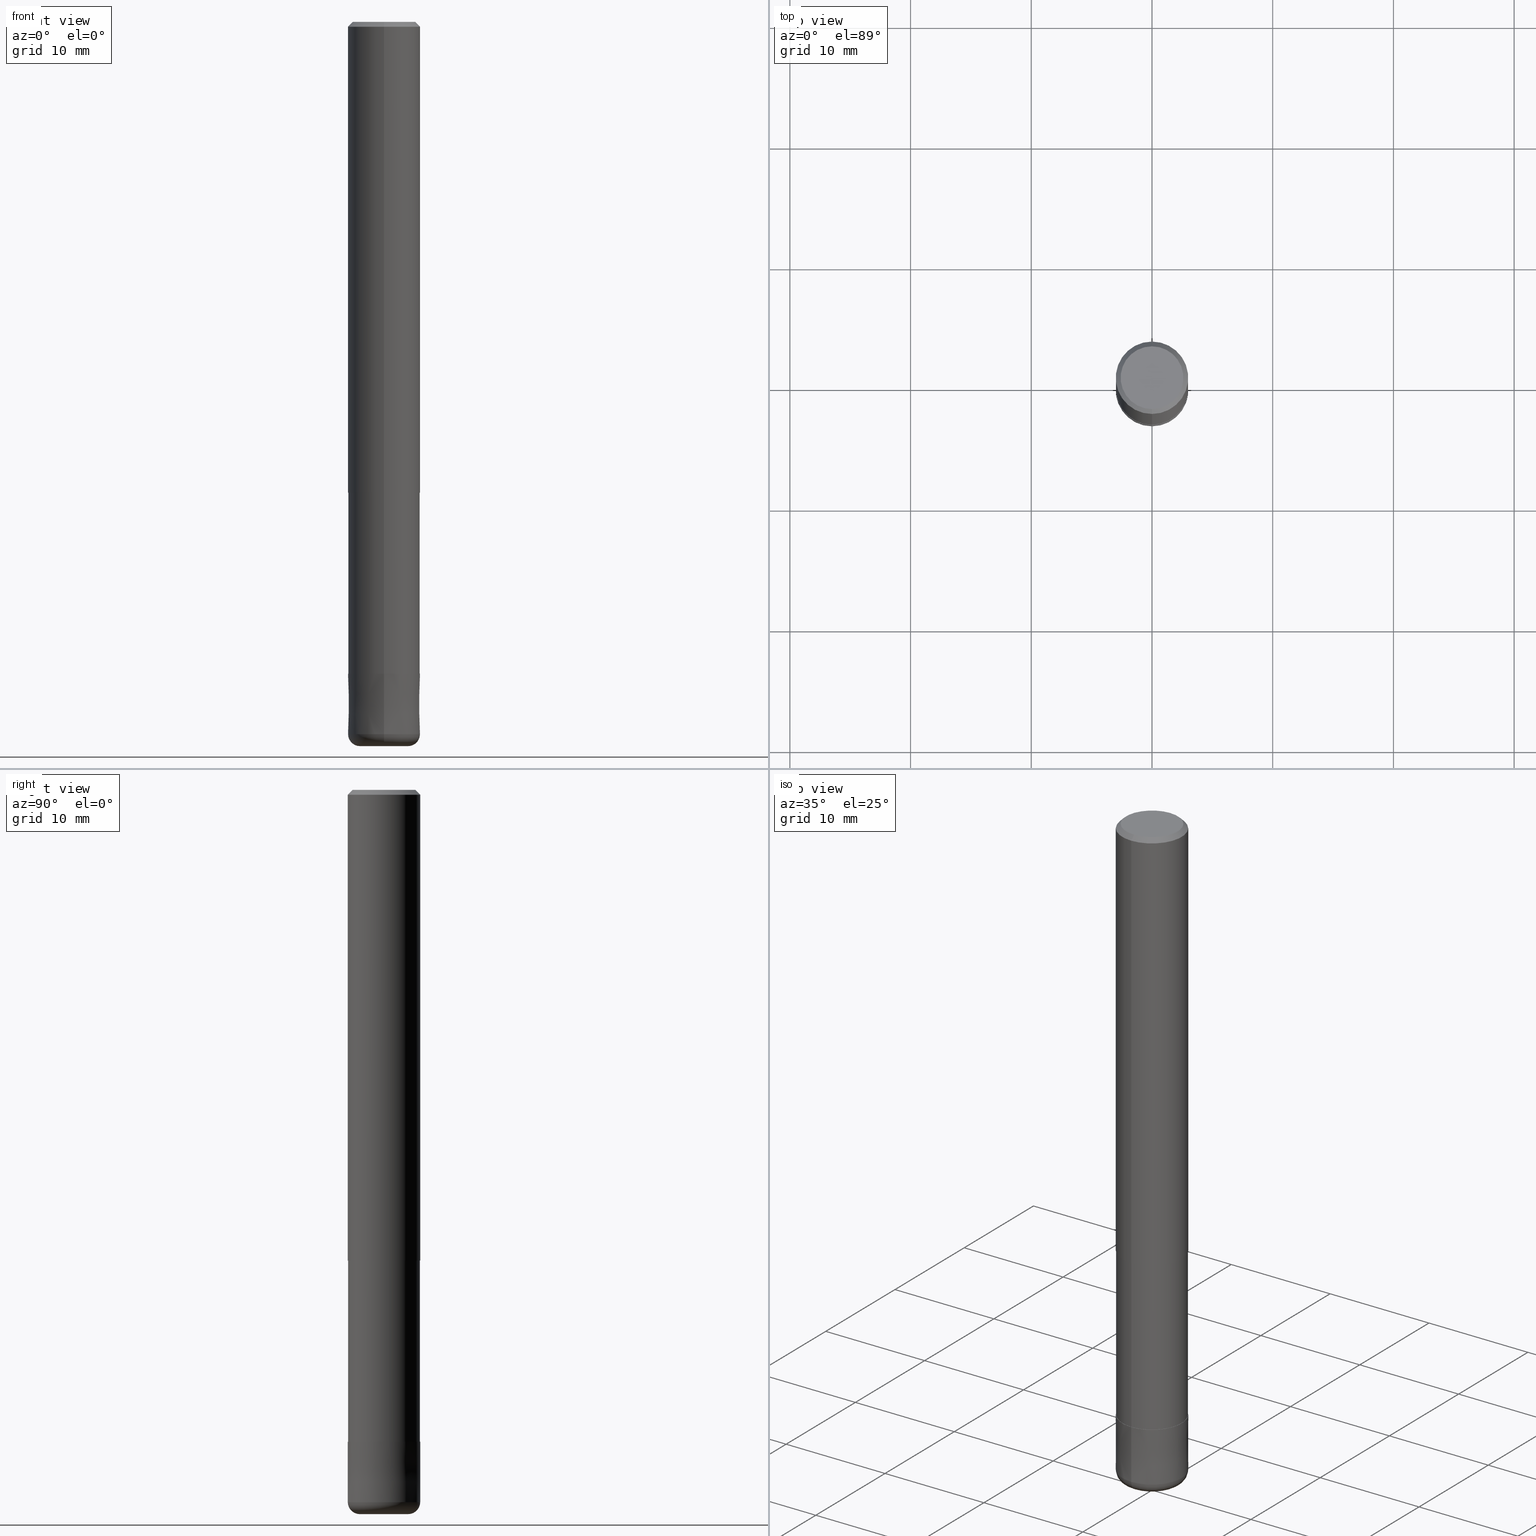
[diagram: canonical four-view strip — front | top / right | iso, engineering-drawing reading convention]
A machine part, canonical four-view strip (front | top / right | iso — engineering-drawing reading convention). The complete STEP part file that produces these views, byte-faithful:
ISO-10303-21;
HEADER;
FILE_DESCRIPTION(('no description'),'unknown implementation level');
FILE_NAME('HHRS6060-10-210-Huellk.stp','  ',('CIMSOURCE GmbH'),('CADClick - KiM GmbH - www.kimweb.de'),'unknown preprocess','ACIS','unknown authorization');
FILE_SCHEMA(('automotive_design'));
ENDSEC;
DATA;
#1=MECHANICAL_DESIGN_GEOMETRIC_PRESENTATION_REPRESENTATION(' ',(#14,#15,#16,#17,#18,#19,#20,#21,#22,#23,#24,#25,#26,#27,#28,#29,#30,#31,#32,#33,#34,#35,#36,#37,#38,#39,#40,#41,#42,#43,#44,#45,#46,#47,#48,#49,#50,#51,#52,#53,#54,#55,#56,#57,#58,#59,#60,#61,#62,#63,#64,#65,#66,#67,#68,#69,#70,#71,#72,#73,#74,#75,#76,#77,#78,#79,#80,#81,#82,#83,#84,#85,#86,#87,#88,#89,#90,#91,#92,#93,#94,#95,#96,#97),#10);
#2=PRODUCT_DEFINITION_CONTEXT('',#98,'design');
#3=APPLICATION_PROTOCOL_DEFINITION('INTERNATIONAL STANDARD','automotive_design',1994,#98);
#4=PRODUCT_CATEGORY_RELATIONSHIP('NONE','NONE',#99,#100);
#5=SHAPE_DEFINITION_REPRESENTATION(#101,#102);
#6=PRODUCT_DEFINITION_CONTEXT('',#103,'design');
#7=APPLICATION_PROTOCOL_DEFINITION('INTERNATIONAL STANDARD','automotive_design',1994,#103);
#8=PRODUCT_CATEGORY_RELATIONSHIP('NONE','NONE',#104,#105);
#9=SHAPE_DEFINITION_REPRESENTATION(#106,#107);
#10= (GEOMETRIC_REPRESENTATION_CONTEXT(3)GLOBAL_UNCERTAINTY_ASSIGNED_CONTEXT((#110))GLOBAL_UNIT_ASSIGNED_CONTEXT((#112,#113,#114))REPRESENTATION_CONTEXT('NONE','WORKSPACE'));
#14=STYLED_ITEM('',(#116),#117);
#15=STYLED_ITEM('',(#118),#119);
#16=STYLED_ITEM('',(#120),#121);
#17=STYLED_ITEM('',(#122),#123);
#18=STYLED_ITEM('',(#124),#125);
#19=STYLED_ITEM('',(#126),#127);
#20=STYLED_ITEM('',(#128),#129);
#21=STYLED_ITEM('',(#130),#131);
#22=STYLED_ITEM('',(#132),#133);
#23=STYLED_ITEM('',(#134),#135);
#24=STYLED_ITEM('',(#136),#137);
#25=STYLED_ITEM('',(#138),#139);
#26=STYLED_ITEM('',(#140),#141);
#27=STYLED_ITEM('',(#142),#143);
#28=STYLED_ITEM('',(#144),#145);
#29=STYLED_ITEM('',(#146),#147);
#30=STYLED_ITEM('',(#148),#149);
#31=STYLED_ITEM('',(#150),#151);
#32=STYLED_ITEM('',(#152),#153);
#33=STYLED_ITEM('',(#154),#155);
#34=STYLED_ITEM('',(#156),#157);
#35=STYLED_ITEM('',(#158),#159);
#36=STYLED_ITEM('',(#160),#161);
#37=STYLED_ITEM('',(#162),#163);
#38=STYLED_ITEM('',(#164),#165);
#39=STYLED_ITEM('',(#166),#167);
#40=STYLED_ITEM('',(#168),#169);
#41=STYLED_ITEM('',(#170),#171);
#42=STYLED_ITEM('',(#172),#173);
#43=STYLED_ITEM('',(#174),#175);
#44=STYLED_ITEM('',(#176),#177);
#45=STYLED_ITEM('',(#178),#179);
#46=STYLED_ITEM('',(#180),#181);
#47=STYLED_ITEM('',(#182),#183);
#48=STYLED_ITEM('',(#184),#185);
#49=STYLED_ITEM('',(#186),#187);
#50=STYLED_ITEM('',(#188),#189);
#51=STYLED_ITEM('',(#190),#191);
#52=STYLED_ITEM('',(#192),#193);
#53=STYLED_ITEM('',(#194),#195);
#54=STYLED_ITEM('',(#196),#197);
#55=STYLED_ITEM('',(#198),#199);
#56=STYLED_ITEM('',(#200),#201);
#57=STYLED_ITEM('',(#202),#203);
#58=STYLED_ITEM('',(#204),#205);
#59=STYLED_ITEM('',(#206),#207);
#60=STYLED_ITEM('',(#208),#209);
#61=STYLED_ITEM('',(#210),#211);
#62=STYLED_ITEM('',(#212),#213);
#63=STYLED_ITEM('',(#214),#215);
#64=STYLED_ITEM('',(#216),#217);
#65=STYLED_ITEM('',(#218),#219);
#66=STYLED_ITEM('',(#220),#221);
#67=STYLED_ITEM('',(#222),#223);
#68=STYLED_ITEM('',(#224),#225);
#69=STYLED_ITEM('',(#226),#227);
#70=STYLED_ITEM('',(#228),#229);
#71=STYLED_ITEM('',(#230),#231);
#72=STYLED_ITEM('',(#232),#233);
#73=STYLED_ITEM('',(#234),#235);
#74=STYLED_ITEM('',(#236),#237);
#75=STYLED_ITEM('',(#238),#239);
#76=STYLED_ITEM('',(#240),#241);
#77=STYLED_ITEM('',(#242),#243);
#78=STYLED_ITEM('',(#244),#245);
#79=STYLED_ITEM('',(#246),#247);
#80=STYLED_ITEM('',(#248),#249);
#81=STYLED_ITEM('',(#250),#251);
#82=STYLED_ITEM('',(#252),#253);
#83=STYLED_ITEM('',(#254),#255);
#84=STYLED_ITEM('',(#256),#257);
#85=STYLED_ITEM('',(#258),#259);
#86=STYLED_ITEM('',(#260),#261);
#87=STYLED_ITEM('',(#262),#263);
#88=STYLED_ITEM('',(#264),#265);
#89=STYLED_ITEM('',(#266),#267);
#90=STYLED_ITEM('',(#268),#269);
#91=STYLED_ITEM('',(#270),#271);
#92=STYLED_ITEM('',(#272),#273);
#93=STYLED_ITEM('',(#274),#275);
#94=STYLED_ITEM('',(#276),#277);
#95=STYLED_ITEM('',(#278),#279);
#96=STYLED_ITEM('',(#280),#281);
#97=STYLED_ITEM('',(#282),#283);
#98=APPLICATION_CONTEXT(' ');
#99=PRODUCT_CATEGORY('part','NONE');
#100=PRODUCT_RELATED_PRODUCT_CATEGORY('detail',' ',(#284));
#101=PRODUCT_DEFINITION_SHAPE('NONE','NONE',#285);
#102=ADVANCED_BREP_SHAPE_REPRESENTATION('1',(#217,#286),#10);
#103=APPLICATION_CONTEXT(' ');
#104=PRODUCT_CATEGORY('part','NONE');
#105=PRODUCT_RELATED_PRODUCT_CATEGORY('detail',' ',(#287));
#106=PRODUCT_DEFINITION_SHAPE('NONE','NONE',#288);
#107=ADVANCED_BREP_SHAPE_REPRESENTATION('2',(#227,#289),#10);
#110=UNCERTAINTY_MEASURE_WITH_UNIT(LENGTH_MEASURE(1.0E-006),#112,'','');
#112= (CONVERSION_BASED_UNIT('MILLIMETRE',#292)LENGTH_UNIT()NAMED_UNIT(#295));
#113= (NAMED_UNIT(#297)PLANE_ANGLE_UNIT()SI_UNIT($,.RADIAN.));
#114= (NAMED_UNIT(#297)SOLID_ANGLE_UNIT()SI_UNIT($,.STERADIAN.));
#116=PRESENTATION_STYLE_ASSIGNMENT((#303));
#117=EDGE_CURVE('',#257,#263,#304,.T.);
#118=PRESENTATION_STYLE_ASSIGNMENT((#305));
#119=VERTEX_POINT('',#306);
#120=PRESENTATION_STYLE_ASSIGNMENT((#307));
#121=VERTEX_POINT('',#308);
#122=PRESENTATION_STYLE_ASSIGNMENT((#309));
#123=VERTEX_POINT('',#310);
#124=PRESENTATION_STYLE_ASSIGNMENT((#311));
#125=VERTEX_POINT('',#312);
#126=PRESENTATION_STYLE_ASSIGNMENT((#313));
#127=EDGE_CURVE('',#165,#225,#314,.T.);
#128=PRESENTATION_STYLE_ASSIGNMENT((#315));
#129=VERTEX_POINT('',#316);
#130=PRESENTATION_STYLE_ASSIGNMENT((#317));
#131=EDGE_CURVE('',#121,#283,#318,.T.);
#132=PRESENTATION_STYLE_ASSIGNMENT((#319));
#133=VERTEX_POINT('',#320);
#134=PRESENTATION_STYLE_ASSIGNMENT((#321));
#135=ADVANCED_FACE('',(#322),#323,.T.);
#136=PRESENTATION_STYLE_ASSIGNMENT((#324));
#137=ADVANCED_FACE('',(#325,#326),#327,.T.);
#138=PRESENTATION_STYLE_ASSIGNMENT((#328));
#139=EDGE_CURVE('',#125,#223,#329,.T.);
#140=PRESENTATION_STYLE_ASSIGNMENT((#330));
#141=ADVANCED_FACE('',(#331),#332,.T.);
#142=PRESENTATION_STYLE_ASSIGNMENT((#333));
#143=EDGE_CURVE('',#239,#121,#334,.T.);
#144=PRESENTATION_STYLE_ASSIGNMENT((#335));
#145=ADVANCED_FACE('',(#336,#337),#338,.T.);
#146=PRESENTATION_STYLE_ASSIGNMENT((#339));
#147=ADVANCED_FACE('',(#340,#341),#342,.T.);
#148=PRESENTATION_STYLE_ASSIGNMENT((#343));
#149=VERTEX_POINT('',#344);
#150=PRESENTATION_STYLE_ASSIGNMENT((#345));
#151=EDGE_CURVE('',#279,#165,#346,.T.);
#152=PRESENTATION_STYLE_ASSIGNMENT((#347));
#153=EDGE_CURVE('',#119,#175,#348,.T.);
#154=PRESENTATION_STYLE_ASSIGNMENT((#349));
#155=EDGE_CURVE('',#149,#169,#350,.T.);
#156=PRESENTATION_STYLE_ASSIGNMENT((#351));
#157=EDGE_CURVE('',#129,#239,#352,.T.);
#158=PRESENTATION_STYLE_ASSIGNMENT((#353));
#159=EDGE_CURVE('',#125,#259,#354,.T.);
#160=PRESENTATION_STYLE_ASSIGNMENT((#355));
#161=EDGE_CURVE('',#199,#273,#356,.T.);
#162=PRESENTATION_STYLE_ASSIGNMENT((#357));
#163=EDGE_CURVE('',#239,#273,#358,.T.);
#164=PRESENTATION_STYLE_ASSIGNMENT((#359));
#165=VERTEX_POINT('',#360);
#166=PRESENTATION_STYLE_ASSIGNMENT((#361));
#167=ADVANCED_FACE('',(#362,#363),#364,.T.);
#168=PRESENTATION_STYLE_ASSIGNMENT((#365));
#169=VERTEX_POINT('',#366);
#170=PRESENTATION_STYLE_ASSIGNMENT((#367));
#171=EDGE_CURVE('',#251,#211,#368,.T.);
#172=PRESENTATION_STYLE_ASSIGNMENT((#369));
#173=ADVANCED_FACE('',(#370),#371,.T.);
#174=PRESENTATION_STYLE_ASSIGNMENT((#372));
#175=VERTEX_POINT('',#373);
#176=PRESENTATION_STYLE_ASSIGNMENT((#374));
#177=EDGE_CURVE('',#133,#119,#375,.T.);
#178=PRESENTATION_STYLE_ASSIGNMENT((#376));
#179=EDGE_CURVE('',#279,#123,#377,.T.);
#180=PRESENTATION_STYLE_ASSIGNMENT((#378));
#181=EDGE_CURVE('',#211,#251,#379,.T.);
#182=PRESENTATION_STYLE_ASSIGNMENT((#380));
#183=EDGE_CURVE('',#225,#123,#381,.T.);
#184=PRESENTATION_STYLE_ASSIGNMENT((#382));
#185=ADVANCED_FACE('',(#383),#384,.F.);
#186=PRESENTATION_STYLE_ASSIGNMENT((#385));
#187=ADVANCED_FACE('',(#386),#387,.T.);
#188=PRESENTATION_STYLE_ASSIGNMENT((#388));
#189=EDGE_CURVE('',#169,#149,#389,.T.);
#190=PRESENTATION_STYLE_ASSIGNMENT((#390));
#191=ADVANCED_FACE('',(#391),#392,.T.);
#192=PRESENTATION_STYLE_ASSIGNMENT((#393));
#193=EDGE_CURVE('',#229,#259,#394,.T.);
#194=PRESENTATION_STYLE_ASSIGNMENT((#395));
#195=EDGE_CURVE('',#239,#129,#396,.T.);
#196=PRESENTATION_STYLE_ASSIGNMENT((#397));
#197=EDGE_CURVE('',#283,#129,#398,.T.);
#198=PRESENTATION_STYLE_ASSIGNMENT((#399));
#199=VERTEX_POINT('',#400);
#200=PRESENTATION_STYLE_ASSIGNMENT((#401));
#201=ADVANCED_FACE('',(#402),#403,.F.);
#202=PRESENTATION_STYLE_ASSIGNMENT((#404));
#203=EDGE_CURVE('',#123,#279,#405,.T.);
#204=PRESENTATION_STYLE_ASSIGNMENT((#406));
#205=EDGE_CURVE('',#271,#175,#407,.T.);
#206=PRESENTATION_STYLE_ASSIGNMENT((#408));
#207=ADVANCED_FACE('',(#409),#410,.T.);
#208=PRESENTATION_STYLE_ASSIGNMENT((#411));
#209=EDGE_CURVE('',#271,#133,#412,.T.);
#210=PRESENTATION_STYLE_ASSIGNMENT((#413));
#211=VERTEX_POINT('',#414);
#212=PRESENTATION_STYLE_ASSIGNMENT((#415));
#213=EDGE_CURVE('',#175,#263,#416,.T.);
#214=PRESENTATION_STYLE_ASSIGNMENT((#417));
#215=EDGE_CURVE('',#259,#125,#418,.T.);
#216=PRESENTATION_STYLE_ASSIGNMENT((#419));
#217=MANIFOLD_SOLID_BREP('1',#420);
#218=PRESENTATION_STYLE_ASSIGNMENT((#421));
#219=EDGE_CURVE('',#273,#199,#422,.T.);
#220=PRESENTATION_STYLE_ASSIGNMENT((#423));
#221=EDGE_CURVE('',#211,#149,#424,.T.);
#222=PRESENTATION_STYLE_ASSIGNMENT((#425));
#223=VERTEX_POINT('',#426);
#224=PRESENTATION_STYLE_ASSIGNMENT((#427));
#225=VERTEX_POINT('',#428);
#226=PRESENTATION_STYLE_ASSIGNMENT((#429));
#227=MANIFOLD_SOLID_BREP('2',#430);
#228=PRESENTATION_STYLE_ASSIGNMENT((#431));
#229=VERTEX_POINT('',#432);
#230=PRESENTATION_STYLE_ASSIGNMENT((#433));
#231=EDGE_CURVE('',#263,#257,#434,.T.);
#232=PRESENTATION_STYLE_ASSIGNMENT((#435));
#233=ADVANCED_FACE('',(#436),#437,.T.);
#234=PRESENTATION_STYLE_ASSIGNMENT((#438));
#235=EDGE_CURVE('',#169,#251,#439,.T.);
#236=PRESENTATION_STYLE_ASSIGNMENT((#440));
#237=ADVANCED_FACE('',(#441),#442,.T.);
#238=PRESENTATION_STYLE_ASSIGNMENT((#443));
#239=VERTEX_POINT('',#444);
#240=PRESENTATION_STYLE_ASSIGNMENT((#445));
#241=EDGE_CURVE('',#229,#223,#446,.T.);
#242=PRESENTATION_STYLE_ASSIGNMENT((#447));
#243=EDGE_CURVE('',#225,#165,#448,.T.);
#244=PRESENTATION_STYLE_ASSIGNMENT((#449));
#245=ADVANCED_FACE('',(#450),#451,.T.);
#246=PRESENTATION_STYLE_ASSIGNMENT((#452));
#247=ADVANCED_FACE('',(#453),#454,.T.);
#248=PRESENTATION_STYLE_ASSIGNMENT((#455));
#249=ADVANCED_FACE('',(#456),#457,.T.);
#250=PRESENTATION_STYLE_ASSIGNMENT((#458));
#251=VERTEX_POINT('',#459);
#252=PRESENTATION_STYLE_ASSIGNMENT((#460));
#253=EDGE_CURVE('',#257,#271,#461,.T.);
#254=PRESENTATION_STYLE_ASSIGNMENT((#462));
#255=EDGE_CURVE('',#119,#133,#463,.T.);
#256=PRESENTATION_STYLE_ASSIGNMENT((#464));
#257=VERTEX_POINT('',#465);
#258=PRESENTATION_STYLE_ASSIGNMENT((#466));
#259=VERTEX_POINT('',#467);
#260=PRESENTATION_STYLE_ASSIGNMENT((#468));
#261=ADVANCED_FACE('',(#469),#470,.T.);
#262=PRESENTATION_STYLE_ASSIGNMENT((#471));
#263=VERTEX_POINT('',#472);
#264=PRESENTATION_STYLE_ASSIGNMENT((#473));
#265=ADVANCED_FACE('',(#474),#475,.T.);
#266=PRESENTATION_STYLE_ASSIGNMENT((#476));
#267=EDGE_CURVE('',#175,#271,#477,.T.);
#268=PRESENTATION_STYLE_ASSIGNMENT((#478));
#269=ADVANCED_FACE('',(#479),#480,.T.);
#270=PRESENTATION_STYLE_ASSIGNMENT((#481));
#271=VERTEX_POINT('',#482);
#272=PRESENTATION_STYLE_ASSIGNMENT((#483));
#273=VERTEX_POINT('',#484);
#274=PRESENTATION_STYLE_ASSIGNMENT((#485));
#275=EDGE_CURVE('',#199,#129,#486,.T.);
#276=PRESENTATION_STYLE_ASSIGNMENT((#487));
#277=EDGE_CURVE('',#283,#121,#488,.T.);
#278=PRESENTATION_STYLE_ASSIGNMENT((#489));
#279=VERTEX_POINT('',#490);
#280=PRESENTATION_STYLE_ASSIGNMENT((#491));
#281=EDGE_CURVE('',#223,#229,#492,.T.);
#282=PRESENTATION_STYLE_ASSIGNMENT((#493));
#283=VERTEX_POINT('',#494);
#284=PRODUCT('1','1','PART-1-DESC',(#495));
#285=PRODUCT_DEFINITION('NONE','NONE',#496,#2);
#286=AXIS2_PLACEMENT_3D('',#497,#498,#499);
#287=PRODUCT('2','2','PART-2-DESC',(#500));
#288=PRODUCT_DEFINITION('NONE','NONE',#501,#6);
#289=AXIS2_PLACEMENT_3D('',#502,#503,#504);
#292=LENGTH_MEASURE_WITH_UNIT(LENGTH_MEASURE(1.0),#505);
#295=DIMENSIONAL_EXPONENTS(1.0,0.0,0.0,0.0,0.0,0.0,0.0);
#297=DIMENSIONAL_EXPONENTS(0.0,0.0,0.0,0.0,0.0,0.0,0.0);
#303=CURVE_STYLE('',#506,POSITIVE_LENGTH_MEASURE(1.0E-006),#507);
#304=CIRCLE('',#508,2.6);
#305=POINT_STYLE(' ',#509,POSITIVE_LENGTH_MEASURE(1.0E-006),#510);
#306=CARTESIAN_POINT('',(3.67381906146713E-016,-3.0,-39.0));
#307=POINT_STYLE(' ',#511,POSITIVE_LENGTH_MEASURE(1.0E-006),#512);
#308=CARTESIAN_POINT('',(2.44921270764475E-016,-2.0,-60.0));
#309=POINT_STYLE(' ',#513,POSITIVE_LENGTH_MEASURE(1.0E-006),#514);
#310=CARTESIAN_POINT('',(0.0,2.97495,-54.0));
#311=POINT_STYLE(' ',#515,POSITIVE_LENGTH_MEASURE(1.0E-006),#516);
#312=CARTESIAN_POINT('',(1.65321857766021E-016,-1.35,-60.0));
#313=CURVE_STYLE('',#517,POSITIVE_LENGTH_MEASURE(1.0E-006),#518);
#314=CIRCLE('',#519,2.97495);
#315=POINT_STYLE(' ',#520,POSITIVE_LENGTH_MEASURE(1.0E-006),#521);
#316=CARTESIAN_POINT('',(0.0,3.0,-59.0));
#317=CURVE_STYLE('',#522,POSITIVE_LENGTH_MEASURE(1.0E-006),#523);
#318=CIRCLE('',#524,2.0);
#319=POINT_STYLE(' ',#525,POSITIVE_LENGTH_MEASURE(1.0E-006),#526);
#320=CARTESIAN_POINT('',(0.0,3.0,-39.0));
#321=SURFACE_STYLE_USAGE(.BOTH.,#527);
#322=FACE_OUTER_BOUND('',#528,.T.);
#323=TOROIDAL_SURFACE('',#529,2.0,1.0);
#324=SURFACE_STYLE_USAGE(.BOTH.,#530);
#325=FACE_OUTER_BOUND('',#531,.T.);
#326=FACE_BOUND('',#532,.T.);
#327=PLANE('',#533);
#328=CURVE_STYLE('',#534,POSITIVE_LENGTH_MEASURE(1.0E-006),#535);
#329=LINE('',#536,#537);
#330=SURFACE_STYLE_USAGE(.BOTH.,#538);
#331=FACE_OUTER_BOUND('',#539,.T.);
#332=CYLINDRICAL_SURFACE('',#540,2.97495);
#333=CURVE_STYLE('',#541,POSITIVE_LENGTH_MEASURE(1.0E-006),#542);
#334=CIRCLE('',#543,1.0);
#335=SURFACE_STYLE_USAGE(.BOTH.,#544);
#336=FACE_BOUND('',#545,.T.);
#337=FACE_OUTER_BOUND('',#546,.T.);
#338=PLANE('',#547);
#339=SURFACE_STYLE_USAGE(.BOTH.,#548);
#340=FACE_BOUND('',#549,.T.);
#341=FACE_OUTER_BOUND('',#550,.T.);
#342=PLANE('',#551);
#343=POINT_STYLE(' ',#552,POSITIVE_LENGTH_MEASURE(1.0E-006),#553);
#344=CARTESIAN_POINT('',(1.65321857766021E-016,-1.35,-54.0));
#345=CURVE_STYLE('',#554,POSITIVE_LENGTH_MEASURE(1.0E-006),#555);
#346=LINE('',#556,#557);
#347=CURVE_STYLE('',#558,POSITIVE_LENGTH_MEASURE(1.0E-006),#559);
#348=LINE('',#560,#561);
#349=CURVE_STYLE('',#562,POSITIVE_LENGTH_MEASURE(1.0E-006),#563);
#350=CIRCLE('',#564,1.35);
#351=CURVE_STYLE('',#565,POSITIVE_LENGTH_MEASURE(1.0E-006),#566);
#352=CIRCLE('',#567,3.0);
#353=CURVE_STYLE('',#568,POSITIVE_LENGTH_MEASURE(1.0E-006),#569);
#354=CIRCLE('',#570,1.35);
#355=CURVE_STYLE('',#571,POSITIVE_LENGTH_MEASURE(1.0E-006),#572);
#356=CIRCLE('',#573,2.9999);
#357=CURVE_STYLE('',#574,POSITIVE_LENGTH_MEASURE(1.0E-006),#575);
#358=LINE('',#576,#577);
#359=POINT_STYLE(' ',#578,POSITIVE_LENGTH_MEASURE(1.0E-006),#579);
#360=CARTESIAN_POINT('',(3.64314267230388E-016,-2.97495,-39.0));
#361=SURFACE_STYLE_USAGE(.BOTH.,#580);
#362=FACE_OUTER_BOUND('',#581,.T.);
#363=FACE_BOUND('',#582,.T.);
#364=PLANE('',#583);
#365=POINT_STYLE(' ',#584,POSITIVE_LENGTH_MEASURE(1.0E-006),#585);
#366=CARTESIAN_POINT('',(0.0,1.35,-54.0));
#367=CURVE_STYLE('',#586,POSITIVE_LENGTH_MEASURE(1.0E-006),#587);
#368=CIRCLE('',#588,1.35);
#369=SURFACE_STYLE_USAGE(.BOTH.,#589);
#370=FACE_OUTER_BOUND('',#590,.T.);
#371=CYLINDRICAL_SURFACE('',#591,1.35);
#372=POINT_STYLE(' ',#592,POSITIVE_LENGTH_MEASURE(1.0E-006),#593);
#373=CARTESIAN_POINT('',(3.67381906146713E-016,-3.0,-0.399999999999999));
#374=CURVE_STYLE('',#594,POSITIVE_LENGTH_MEASURE(1.0E-006),#595);
#375=CIRCLE('',#596,3.0);
#376=CURVE_STYLE('',#597,POSITIVE_LENGTH_MEASURE(1.0E-006),#598);
#377=CIRCLE('',#599,2.97495);
#378=CURVE_STYLE('',#600,POSITIVE_LENGTH_MEASURE(1.0E-006),#601);
#379=CIRCLE('',#602,1.35);
#380=CURVE_STYLE('',#603,POSITIVE_LENGTH_MEASURE(1.0E-006),#604);
#381=LINE('',#605,#606);
#382=SURFACE_STYLE_USAGE(.BOTH.,#607);
#383=FACE_OUTER_BOUND('',#608,.T.);
#384=CYLINDRICAL_SURFACE('',#609,1.35);
#385=SURFACE_STYLE_USAGE(.BOTH.,#610);
#386=FACE_OUTER_BOUND('',#611,.T.);
#387=CYLINDRICAL_SURFACE('',#612,3.0);
#388=CURVE_STYLE('',#613,POSITIVE_LENGTH_MEASURE(1.0E-006),#614);
#389=CIRCLE('',#615,1.35);
#390=SURFACE_STYLE_USAGE(.BOTH.,#616);
#391=FACE_OUTER_BOUND('',#617,.T.);
#392=CONICAL_SURFACE('',#618,2.8,0.78539816339745);
#393=CURVE_STYLE('',#619,POSITIVE_LENGTH_MEASURE(1.0E-006),#620);
#394=LINE('',#621,#622);
#395=CURVE_STYLE('',#623,POSITIVE_LENGTH_MEASURE(1.0E-006),#624);
#396=CIRCLE('',#625,3.0);
#397=CURVE_STYLE('',#626,POSITIVE_LENGTH_MEASURE(1.0E-006),#627);
#398=CIRCLE('',#628,1.0);
#399=POINT_STYLE(' ',#629,POSITIVE_LENGTH_MEASURE(1.0E-006),#630);
#400=CARTESIAN_POINT('',(0.0,2.9999,-54.0));
#401=SURFACE_STYLE_USAGE(.BOTH.,#631);
#402=FACE_OUTER_BOUND('',#632,.T.);
#403=CYLINDRICAL_SURFACE('',#633,1.35);
#404=CURVE_STYLE('',#634,POSITIVE_LENGTH_MEASURE(1.0E-006),#635);
#405=CIRCLE('',#636,2.97495);
#406=CURVE_STYLE('',#637,POSITIVE_LENGTH_MEASURE(1.0E-006),#638);
#407=CIRCLE('',#639,3.0);
#408=SURFACE_STYLE_USAGE(.BOTH.,#640);
#409=FACE_OUTER_BOUND('',#641,.T.);
#410=CYLINDRICAL_SURFACE('',#642,3.0);
#411=CURVE_STYLE('',#643,POSITIVE_LENGTH_MEASURE(1.0E-006),#644);
#412=LINE('',#645,#646);
#413=POINT_STYLE(' ',#647,POSITIVE_LENGTH_MEASURE(1.0E-006),#648);
#414=CARTESIAN_POINT('',(1.65321857766021E-016,-1.35,-59.9));
#415=CURVE_STYLE('',#649,POSITIVE_LENGTH_MEASURE(1.0E-006),#650);
#416=LINE('',#651,#652);
#417=CURVE_STYLE('',#653,POSITIVE_LENGTH_MEASURE(1.0E-006),#654);
#418=CIRCLE('',#655,1.35);
#419=SURFACE_STYLE_USAGE(.BOTH.,#656);
#420=CLOSED_SHELL('',(#173,#265,#207,#261,#167,#247,#191,#187,#141,#147,#245,#237));
#421=CURVE_STYLE('',#657,POSITIVE_LENGTH_MEASURE(1.0E-006),#658);
#422=CIRCLE('',#659,2.9999);
#423=CURVE_STYLE('',#660,POSITIVE_LENGTH_MEASURE(1.0E-006),#661);
#424=LINE('',#662,#663);
#425=POINT_STYLE(' ',#664,POSITIVE_LENGTH_MEASURE(1.0E-006),#665);
#426=CARTESIAN_POINT('',(1.65321857766021E-016,-1.35,-54.0));
#427=POINT_STYLE(' ',#666,POSITIVE_LENGTH_MEASURE(1.0E-006),#667);
#428=CARTESIAN_POINT('',(0.0,2.97495,-39.0));
#429=SURFACE_STYLE_USAGE(.BOTH.,#668);
#430=CLOSED_SHELL('',(#201,#249,#269,#137,#233,#135,#145,#185));
#431=POINT_STYLE(' ',#669,POSITIVE_LENGTH_MEASURE(1.0E-006),#670);
#432=CARTESIAN_POINT('',(0.0,1.35,-54.0));
#433=CURVE_STYLE('',#671,POSITIVE_LENGTH_MEASURE(1.0E-006),#672);
#434=CIRCLE('',#673,2.6);
#435=SURFACE_STYLE_USAGE(.BOTH.,#674);
#436=FACE_OUTER_BOUND('',#675,.T.);
#437=CONICAL_SURFACE('',#676,2.99995,1.99999999973755E-005);
#438=CURVE_STYLE('',#677,POSITIVE_LENGTH_MEASURE(1.0E-006),#678);
#439=LINE('',#679,#680);
#440=SURFACE_STYLE_USAGE(.BOTH.,#681);
#441=FACE_OUTER_BOUND('',#682,.T.);
#442=PLANE('',#683);
#443=POINT_STYLE(' ',#684,POSITIVE_LENGTH_MEASURE(1.0E-006),#685);
#444=CARTESIAN_POINT('',(3.67381906146713E-016,-3.0,-59.0));
#445=CURVE_STYLE('',#686,POSITIVE_LENGTH_MEASURE(1.0E-006),#687);
#446=CIRCLE('',#688,1.35);
#447=CURVE_STYLE('',#689,POSITIVE_LENGTH_MEASURE(1.0E-006),#690);
#448=CIRCLE('',#691,2.97495);
#449=SURFACE_STYLE_USAGE(.BOTH.,#692);
#450=FACE_OUTER_BOUND('',#693,.T.);
#451=CYLINDRICAL_SURFACE('',#694,1.35);
#452=SURFACE_STYLE_USAGE(.BOTH.,#695);
#453=FACE_OUTER_BOUND('',#696,.T.);
#454=PLANE('',#697);
#455=SURFACE_STYLE_USAGE(.BOTH.,#698);
#456=FACE_OUTER_BOUND('',#699,.T.);
#457=TOROIDAL_SURFACE('',#700,2.0,1.0);
#458=POINT_STYLE(' ',#701,POSITIVE_LENGTH_MEASURE(1.0E-006),#702);
#459=CARTESIAN_POINT('',(0.0,1.35,-59.9));
#460=CURVE_STYLE('',#703,POSITIVE_LENGTH_MEASURE(1.0E-006),#704);
#461=LINE('',#705,#706);
#462=CURVE_STYLE('',#707,POSITIVE_LENGTH_MEASURE(1.0E-006),#708);
#463=CIRCLE('',#709,3.0);
#464=POINT_STYLE(' ',#710,POSITIVE_LENGTH_MEASURE(1.0E-006),#711);
#465=CARTESIAN_POINT('',(0.0,2.6,0.0));
#466=POINT_STYLE(' ',#712,POSITIVE_LENGTH_MEASURE(1.0E-006),#713);
#467=CARTESIAN_POINT('',(0.0,1.35,-60.0));
#468=SURFACE_STYLE_USAGE(.BOTH.,#714);
#469=FACE_OUTER_BOUND('',#715,.T.);
#470=CONICAL_SURFACE('',#716,2.8,0.78539816339745);
#471=POINT_STYLE(' ',#717,POSITIVE_LENGTH_MEASURE(1.0E-006),#718);
#472=CARTESIAN_POINT('',(3.18397651993818E-016,-2.6,0.0));
#473=SURFACE_STYLE_USAGE(.BOTH.,#719);
#474=FACE_OUTER_BOUND('',#720,.T.);
#475=CYLINDRICAL_SURFACE('',#721,2.97495);
#476=CURVE_STYLE('',#722,POSITIVE_LENGTH_MEASURE(1.0E-006),#723);
#477=CIRCLE('',#724,3.0);
#478=SURFACE_STYLE_USAGE(.BOTH.,#725);
#479=FACE_OUTER_BOUND('',#726,.T.);
#480=CONICAL_SURFACE('',#727,2.99995,1.99999999973755E-005);
#481=POINT_STYLE(' ',#728,POSITIVE_LENGTH_MEASURE(1.0E-006),#729);
#482=CARTESIAN_POINT('',(0.0,3.0,-0.399999999999999));
#483=POINT_STYLE(' ',#730,POSITIVE_LENGTH_MEASURE(1.0E-006),#731);
#484=CARTESIAN_POINT('',(3.67369660083175E-016,-2.9999,-54.0));
#485=CURVE_STYLE('',#732,POSITIVE_LENGTH_MEASURE(1.0E-006),#733);
#486=LINE('',#734,#735);
#487=CURVE_STYLE('',#736,POSITIVE_LENGTH_MEASURE(1.0E-006),#737);
#488=CIRCLE('',#738,2.0);
#489=POINT_STYLE(' ',#739,POSITIVE_LENGTH_MEASURE(1.0E-006),#740);
#490=CARTESIAN_POINT('',(3.64314267230388E-016,-2.97495,-54.0));
#491=CURVE_STYLE('',#741,POSITIVE_LENGTH_MEASURE(1.0E-006),#742);
#492=CIRCLE('',#743,1.35);
#493=POINT_STYLE(' ',#744,POSITIVE_LENGTH_MEASURE(1.0E-006),#745);
#494=CARTESIAN_POINT('',(0.0,2.0,-60.0));
#495=PRODUCT_CONTEXT('',#98,'mechanical');
#496=PRODUCT_DEFINITION_FORMATION_WITH_SPECIFIED_SOURCE(' ','NONE',#284,.NOT_KNOWN.);
#497=CARTESIAN_POINT('',(0.0,0.0,0.0));
#498=DIRECTION('',(0.0,0.0,1.0));
#499=DIRECTION('',(1.0,0.0,0.0));
#500=PRODUCT_CONTEXT('',#103,'mechanical');
#501=PRODUCT_DEFINITION_FORMATION_WITH_SPECIFIED_SOURCE(' ','NONE',#287,.NOT_KNOWN.);
#502=CARTESIAN_POINT('',(0.0,0.0,0.0));
#503=DIRECTION('',(0.0,0.0,1.0));
#504=DIRECTION('',(1.0,0.0,0.0));
#505= (NAMED_UNIT(#295)LENGTH_UNIT()SI_UNIT(.MILLI.,.METRE.));
#506=DRAUGHTING_PRE_DEFINED_CURVE_FONT('continuous');
#507=COLOUR_RGB('',0.498039215803146,0.498039215803146,0.498039215803146);
#508=AXIS2_PLACEMENT_3D('',#747,#748,#749);
#509=PRE_DEFINED_MARKER('');
#510=COLOUR_RGB('',0.498039215803146,0.498039215803146,0.498039215803146);
#511=PRE_DEFINED_MARKER('');
#512=COLOUR_RGB('',0.800000011920929,0.800000011920929,0.800000011920929);
#513=PRE_DEFINED_MARKER('');
#514=COLOUR_RGB('',0.498039215803146,0.498039215803146,0.498039215803146);
#515=PRE_DEFINED_MARKER('');
#516=COLOUR_RGB('',0.800000011920929,0.800000011920929,0.800000011920929);
#517=DRAUGHTING_PRE_DEFINED_CURVE_FONT('continuous');
#518=COLOUR_RGB('',0.498039215803146,0.498039215803146,0.498039215803146);
#519=AXIS2_PLACEMENT_3D('',#750,#751,#752);
#520=PRE_DEFINED_MARKER('');
#521=COLOUR_RGB('',0.800000011920929,0.800000011920929,0.800000011920929);
#522=DRAUGHTING_PRE_DEFINED_CURVE_FONT('continuous');
#523=COLOUR_RGB('',0.800000011920929,0.800000011920929,0.800000011920929);
#524=AXIS2_PLACEMENT_3D('',#753,#754,#755);
#525=PRE_DEFINED_MARKER('');
#526=COLOUR_RGB('',0.498039215803146,0.498039215803146,0.498039215803146);
#527=SURFACE_SIDE_STYLE('',(#756));
#528=EDGE_LOOP('',(#757,#758,#759,#760));
#529=AXIS2_PLACEMENT_3D('',#761,#762,#763);
#530=SURFACE_SIDE_STYLE('',(#764));
#531=EDGE_LOOP('',(#765,#766));
#532=EDGE_LOOP('',(#767,#768));
#533=AXIS2_PLACEMENT_3D('',#769,#770,#771);
#534=DRAUGHTING_PRE_DEFINED_CURVE_FONT('continuous');
#535=COLOUR_RGB('',0.800000011920929,0.800000011920929,0.800000011920929);
#536=CARTESIAN_POINT('',(1.65321857766021E-016,-1.35,-57.0));
#537=VECTOR('',#772,1.0);
#538=SURFACE_SIDE_STYLE('',(#773));
#539=EDGE_LOOP('',(#774,#775,#776,#777));
#540=AXIS2_PLACEMENT_3D('',#778,#779,#780);
#541=DRAUGHTING_PRE_DEFINED_CURVE_FONT('continuous');
#542=COLOUR_RGB('',0.800000011920929,0.800000011920929,0.800000011920929);
#543=AXIS2_PLACEMENT_3D('',#781,#782,#783);
#544=SURFACE_SIDE_STYLE('',(#784));
#545=EDGE_LOOP('',(#785,#786));
#546=EDGE_LOOP('',(#787,#788));
#547=AXIS2_PLACEMENT_3D('',#789,#790,#791);
#548=SURFACE_SIDE_STYLE('',(#792));
#549=EDGE_LOOP('',(#793,#794));
#550=EDGE_LOOP('',(#795,#796));
#551=AXIS2_PLACEMENT_3D('',#797,#798,#799);
#552=PRE_DEFINED_MARKER('');
#553=COLOUR_RGB('',0.498039215803146,0.498039215803146,0.498039215803146);
#554=DRAUGHTING_PRE_DEFINED_CURVE_FONT('continuous');
#555=COLOUR_RGB('',0.498039215803146,0.498039215803146,0.498039215803146);
#556=CARTESIAN_POINT('',(3.64314267230388E-016,-2.97495,-46.5));
#557=VECTOR('',#800,1.0);
#558=DRAUGHTING_PRE_DEFINED_CURVE_FONT('continuous');
#559=COLOUR_RGB('',0.498039215803146,0.498039215803146,0.498039215803146);
#560=CARTESIAN_POINT('',(3.67381906146713E-016,-3.0,-19.7));
#561=VECTOR('',#801,1.0);
#562=DRAUGHTING_PRE_DEFINED_CURVE_FONT('continuous');
#563=COLOUR_RGB('',0.498039215803146,0.498039215803146,0.498039215803146);
#564=AXIS2_PLACEMENT_3D('',#802,#803,#804);
#565=DRAUGHTING_PRE_DEFINED_CURVE_FONT('continuous');
#566=COLOUR_RGB('',0.800000011920929,0.800000011920929,0.800000011920929);
#567=AXIS2_PLACEMENT_3D('',#805,#806,#807);
#568=DRAUGHTING_PRE_DEFINED_CURVE_FONT('continuous');
#569=COLOUR_RGB('',0.800000011920929,0.800000011920929,0.800000011920929);
#570=AXIS2_PLACEMENT_3D('',#808,#809,#810);
#571=DRAUGHTING_PRE_DEFINED_CURVE_FONT('continuous');
#572=COLOUR_RGB('',0.800000011920929,0.800000011920929,0.800000011920929);
#573=AXIS2_PLACEMENT_3D('',#811,#812,#813);
#574=DRAUGHTING_PRE_DEFINED_CURVE_FONT('continuous');
#575=COLOUR_RGB('',0.800000011920929,0.800000011920929,0.800000011920929);
#576=CARTESIAN_POINT('',(3.67375783114944E-016,-2.99995,-56.5));
#577=VECTOR('',#814,1.0);
#578=PRE_DEFINED_MARKER('');
#579=COLOUR_RGB('',0.498039215803146,0.498039215803146,0.498039215803146);
#580=SURFACE_SIDE_STYLE('',(#815));
#581=EDGE_LOOP('',(#816,#817));
#582=EDGE_LOOP('',(#818,#819));
#583=AXIS2_PLACEMENT_3D('',#820,#821,#822);
#584=PRE_DEFINED_MARKER('');
#585=COLOUR_RGB('',0.498039215803146,0.498039215803146,0.498039215803146);
#586=DRAUGHTING_PRE_DEFINED_CURVE_FONT('continuous');
#587=COLOUR_RGB('',0.498039215803146,0.498039215803146,0.498039215803146);
#588=AXIS2_PLACEMENT_3D('',#823,#824,#825);
#589=SURFACE_SIDE_STYLE('',(#826));
#590=EDGE_LOOP('',(#827,#828,#829,#830));
#591=AXIS2_PLACEMENT_3D('',#831,#832,#833);
#592=PRE_DEFINED_MARKER('');
#593=COLOUR_RGB('',0.498039215803146,0.498039215803146,0.498039215803146);
#594=DRAUGHTING_PRE_DEFINED_CURVE_FONT('continuous');
#595=COLOUR_RGB('',0.498039215803146,0.498039215803146,0.498039215803146);
#596=AXIS2_PLACEMENT_3D('',#834,#835,#836);
#597=DRAUGHTING_PRE_DEFINED_CURVE_FONT('continuous');
#598=COLOUR_RGB('',0.498039215803146,0.498039215803146,0.498039215803146);
#599=AXIS2_PLACEMENT_3D('',#837,#838,#839);
#600=DRAUGHTING_PRE_DEFINED_CURVE_FONT('continuous');
#601=COLOUR_RGB('',0.498039215803146,0.498039215803146,0.498039215803146);
#602=AXIS2_PLACEMENT_3D('',#840,#841,#842);
#603=DRAUGHTING_PRE_DEFINED_CURVE_FONT('continuous');
#604=COLOUR_RGB('',0.498039215803146,0.498039215803146,0.498039215803146);
#605=CARTESIAN_POINT('',(-3.64314267230388E-016,2.97495,-46.5));
#606=VECTOR('',#843,1.0);
#607=SURFACE_SIDE_STYLE('',(#844));
#608=EDGE_LOOP('',(#845,#846,#847,#848));
#609=AXIS2_PLACEMENT_3D('',#849,#850,#851);
#610=SURFACE_SIDE_STYLE('',(#852));
#611=EDGE_LOOP('',(#853,#854,#855,#856));
#612=AXIS2_PLACEMENT_3D('',#857,#858,#859);
#613=DRAUGHTING_PRE_DEFINED_CURVE_FONT('continuous');
#614=COLOUR_RGB('',0.498039215803146,0.498039215803146,0.498039215803146);
#615=AXIS2_PLACEMENT_3D('',#860,#861,#862);
#616=SURFACE_SIDE_STYLE('',(#863));
#617=EDGE_LOOP('',(#864,#865,#866,#867));
#618=AXIS2_PLACEMENT_3D('',#868,#869,#870);
#619=DRAUGHTING_PRE_DEFINED_CURVE_FONT('continuous');
#620=COLOUR_RGB('',0.800000011920929,0.800000011920929,0.800000011920929);
#621=CARTESIAN_POINT('',(-1.65321857766021E-016,1.35,-57.0));
#622=VECTOR('',#871,1.0);
#623=DRAUGHTING_PRE_DEFINED_CURVE_FONT('continuous');
#624=COLOUR_RGB('',0.800000011920929,0.800000011920929,0.800000011920929);
#625=AXIS2_PLACEMENT_3D('',#872,#873,#874);
#626=DRAUGHTING_PRE_DEFINED_CURVE_FONT('continuous');
#627=COLOUR_RGB('',0.800000011920929,0.800000011920929,0.800000011920929);
#628=AXIS2_PLACEMENT_3D('',#875,#876,#877);
#629=PRE_DEFINED_MARKER('');
#630=COLOUR_RGB('',0.800000011920929,0.800000011920929,0.800000011920929);
#631=SURFACE_SIDE_STYLE('',(#878));
#632=EDGE_LOOP('',(#879,#880,#881,#882));
#633=AXIS2_PLACEMENT_3D('',#883,#884,#885);
#634=DRAUGHTING_PRE_DEFINED_CURVE_FONT('continuous');
#635=COLOUR_RGB('',0.498039215803146,0.498039215803146,0.498039215803146);
#636=AXIS2_PLACEMENT_3D('',#886,#887,#888);
#637=DRAUGHTING_PRE_DEFINED_CURVE_FONT('continuous');
#638=COLOUR_RGB('',0.498039215803146,0.498039215803146,0.498039215803146);
#639=AXIS2_PLACEMENT_3D('',#889,#890,#891);
#640=SURFACE_SIDE_STYLE('',(#892));
#641=EDGE_LOOP('',(#893,#894,#895,#896));
#642=AXIS2_PLACEMENT_3D('',#897,#898,#899);
#643=DRAUGHTING_PRE_DEFINED_CURVE_FONT('continuous');
#644=COLOUR_RGB('',0.498039215803146,0.498039215803146,0.498039215803146);
#645=CARTESIAN_POINT('',(-3.67381906146713E-016,3.0,-19.7));
#646=VECTOR('',#900,1.0);
#647=PRE_DEFINED_MARKER('');
#648=COLOUR_RGB('',0.498039215803146,0.498039215803146,0.498039215803146);
#649=DRAUGHTING_PRE_DEFINED_CURVE_FONT('continuous');
#650=COLOUR_RGB('',0.498039215803146,0.498039215803146,0.498039215803146);
#651=CARTESIAN_POINT('',(3.42889779070266E-016,-2.8,-0.200000000000003));
#652=VECTOR('',#901,1.0);
#653=DRAUGHTING_PRE_DEFINED_CURVE_FONT('continuous');
#654=COLOUR_RGB('',0.800000011920929,0.800000011920929,0.800000011920929);
#655=AXIS2_PLACEMENT_3D('',#902,#903,#904);
#656=SURFACE_SIDE_STYLE('',(#905));
#657=DRAUGHTING_PRE_DEFINED_CURVE_FONT('continuous');
#658=COLOUR_RGB('',0.800000011920929,0.800000011920929,0.800000011920929);
#659=AXIS2_PLACEMENT_3D('',#906,#907,#908);
#660=DRAUGHTING_PRE_DEFINED_CURVE_FONT('continuous');
#661=COLOUR_RGB('',0.498039215803146,0.498039215803146,0.498039215803146);
#662=CARTESIAN_POINT('',(1.65321857766021E-016,-1.35,-56.95));
#663=VECTOR('',#909,1.0);
#664=PRE_DEFINED_MARKER('');
#665=COLOUR_RGB('',0.800000011920929,0.800000011920929,0.800000011920929);
#666=PRE_DEFINED_MARKER('');
#667=COLOUR_RGB('',0.498039215803146,0.498039215803146,0.498039215803146);
#668=SURFACE_SIDE_STYLE('',(#910));
#669=PRE_DEFINED_MARKER('');
#670=COLOUR_RGB('',0.800000011920929,0.800000011920929,0.800000011920929);
#671=DRAUGHTING_PRE_DEFINED_CURVE_FONT('continuous');
#672=COLOUR_RGB('',0.498039215803146,0.498039215803146,0.498039215803146);
#673=AXIS2_PLACEMENT_3D('',#911,#912,#913);
#674=SURFACE_SIDE_STYLE('',(#914));
#675=EDGE_LOOP('',(#915,#916,#917,#918));
#676=AXIS2_PLACEMENT_3D('',#919,#920,#921);
#677=DRAUGHTING_PRE_DEFINED_CURVE_FONT('continuous');
#678=COLOUR_RGB('',0.498039215803146,0.498039215803146,0.498039215803146);
#679=CARTESIAN_POINT('',(-1.65321857766021E-016,1.35,-56.95));
#680=VECTOR('',#922,1.0);
#681=SURFACE_SIDE_STYLE('',(#923));
#682=EDGE_LOOP('',(#924,#925));
#683=AXIS2_PLACEMENT_3D('',#926,#927,#928);
#684=PRE_DEFINED_MARKER('');
#685=COLOUR_RGB('',0.800000011920929,0.800000011920929,0.800000011920929);
#686=DRAUGHTING_PRE_DEFINED_CURVE_FONT('continuous');
#687=COLOUR_RGB('',0.800000011920929,0.800000011920929,0.800000011920929);
#688=AXIS2_PLACEMENT_3D('',#929,#930,#931);
#689=DRAUGHTING_PRE_DEFINED_CURVE_FONT('continuous');
#690=COLOUR_RGB('',0.498039215803146,0.498039215803146,0.498039215803146);
#691=AXIS2_PLACEMENT_3D('',#932,#933,#934);
#692=SURFACE_SIDE_STYLE('',(#935));
#693=EDGE_LOOP('',(#936,#937,#938,#939));
#694=AXIS2_PLACEMENT_3D('',#940,#941,#942);
#695=SURFACE_SIDE_STYLE('',(#943));
#696=EDGE_LOOP('',(#944,#945));
#697=AXIS2_PLACEMENT_3D('',#946,#947,#948);
#698=SURFACE_SIDE_STYLE('',(#949));
#699=EDGE_LOOP('',(#950,#951,#952,#953));
#700=AXIS2_PLACEMENT_3D('',#954,#955,#956);
#701=PRE_DEFINED_MARKER('');
#702=COLOUR_RGB('',0.498039215803146,0.498039215803146,0.498039215803146);
#703=DRAUGHTING_PRE_DEFINED_CURVE_FONT('continuous');
#704=COLOUR_RGB('',0.498039215803146,0.498039215803146,0.498039215803146);
#705=CARTESIAN_POINT('',(-3.42889779070266E-016,2.8,-0.200000000000003));
#706=VECTOR('',#957,1.0);
#707=DRAUGHTING_PRE_DEFINED_CURVE_FONT('continuous');
#708=COLOUR_RGB('',0.498039215803146,0.498039215803146,0.498039215803146);
#709=AXIS2_PLACEMENT_3D('',#958,#959,#960);
#710=PRE_DEFINED_MARKER('');
#711=COLOUR_RGB('',0.498039215803146,0.498039215803146,0.498039215803146);
#712=PRE_DEFINED_MARKER('');
#713=COLOUR_RGB('',0.800000011920929,0.800000011920929,0.800000011920929);
#714=SURFACE_SIDE_STYLE('',(#961));
#715=EDGE_LOOP('',(#962,#963,#964,#965));
#716=AXIS2_PLACEMENT_3D('',#966,#967,#968);
#717=PRE_DEFINED_MARKER('');
#718=COLOUR_RGB('',0.498039215803146,0.498039215803146,0.498039215803146);
#719=SURFACE_SIDE_STYLE('',(#969));
#720=EDGE_LOOP('',(#970,#971,#972,#973));
#721=AXIS2_PLACEMENT_3D('',#974,#975,#976);
#722=DRAUGHTING_PRE_DEFINED_CURVE_FONT('continuous');
#723=COLOUR_RGB('',0.498039215803146,0.498039215803146,0.498039215803146);
#724=AXIS2_PLACEMENT_3D('',#977,#978,#979);
#725=SURFACE_SIDE_STYLE('',(#980));
#726=EDGE_LOOP('',(#981,#982,#983,#984));
#727=AXIS2_PLACEMENT_3D('',#985,#986,#987);
#728=PRE_DEFINED_MARKER('');
#729=COLOUR_RGB('',0.498039215803146,0.498039215803146,0.498039215803146);
#730=PRE_DEFINED_MARKER('');
#731=COLOUR_RGB('',0.800000011920929,0.800000011920929,0.800000011920929);
#732=DRAUGHTING_PRE_DEFINED_CURVE_FONT('continuous');
#733=COLOUR_RGB('',0.800000011920929,0.800000011920929,0.800000011920929);
#734=CARTESIAN_POINT('',(-3.67375783114944E-016,2.99995,-56.5));
#735=VECTOR('',#988,1.0);
#736=DRAUGHTING_PRE_DEFINED_CURVE_FONT('continuous');
#737=COLOUR_RGB('',0.800000011920929,0.800000011920929,0.800000011920929);
#738=AXIS2_PLACEMENT_3D('',#989,#990,#991);
#739=PRE_DEFINED_MARKER('');
#740=COLOUR_RGB('',0.498039215803146,0.498039215803146,0.498039215803146);
#741=DRAUGHTING_PRE_DEFINED_CURVE_FONT('continuous');
#742=COLOUR_RGB('',0.800000011920929,0.800000011920929,0.800000011920929);
#743=AXIS2_PLACEMENT_3D('',#992,#993,#994);
#744=PRE_DEFINED_MARKER('');
#745=COLOUR_RGB('',0.800000011920929,0.800000011920929,0.800000011920929);
#747=CARTESIAN_POINT('',(0.0,0.0,0.0));
#748=DIRECTION('',(0.0,0.0,-1.0));
#749=DIRECTION('',(0.0,1.0,0.0));
#750=CARTESIAN_POINT('',(0.0,0.0,-39.0));
#751=DIRECTION('',(0.0,0.0,-1.0));
#752=DIRECTION('',(0.0,1.0,0.0));
#753=CARTESIAN_POINT('',(0.0,0.0,-60.0));
#754=DIRECTION('',(0.0,0.0,-1.0));
#755=DIRECTION('',(0.0,1.0,0.0));
#756=SURFACE_STYLE_FILL_AREA(#995);
#757=ORIENTED_EDGE('',*,*,#143,.T.);
#758=ORIENTED_EDGE('',*,*,#277,.F.);
#759=ORIENTED_EDGE('',*,*,#197,.T.);
#760=ORIENTED_EDGE('',*,*,#157,.T.);
#761=CARTESIAN_POINT('',(0.0,0.0,-59.0));
#762=DIRECTION('',(0.0,0.0,-1.0));
#763=DIRECTION('',(0.0,-1.0,0.0));
#764=SURFACE_STYLE_FILL_AREA(#996);
#765=ORIENTED_EDGE('',*,*,#161,.F.);
#766=ORIENTED_EDGE('',*,*,#219,.F.);
#767=ORIENTED_EDGE('',*,*,#241,.T.);
#768=ORIENTED_EDGE('',*,*,#281,.T.);
#769=CARTESIAN_POINT('',(0.0,2.17495,-54.0));
#770=DIRECTION('',(-0.0,0.0,1.0));
#771=DIRECTION('',(0.0,-1.0,0.0));
#772=DIRECTION('',(0.0,-0.0,1.0));
#773=SURFACE_STYLE_FILL_AREA(#997);
#774=ORIENTED_EDGE('',*,*,#183,.T.);
#775=ORIENTED_EDGE('',*,*,#179,.F.);
#776=ORIENTED_EDGE('',*,*,#151,.T.);
#777=ORIENTED_EDGE('',*,*,#127,.T.);
#778=CARTESIAN_POINT('',(0.0,0.0,-46.5));
#779=DIRECTION('',(-0.0,-0.0,1.0));
#780=DIRECTION('',(0.0,1.0,0.0));
#781=CARTESIAN_POINT('',(2.44921270764475E-016,-2.0,-59.0));
#782=DIRECTION('',(1.0,1.22460635382238E-016,0.0));
#783=DIRECTION('',(1.22460635382238E-016,-1.0,-0.0));
#784=SURFACE_STYLE_FILL_AREA(#998);
#785=ORIENTED_EDGE('',*,*,#215,.F.);
#786=ORIENTED_EDGE('',*,*,#159,.F.);
#787=ORIENTED_EDGE('',*,*,#277,.T.);
#788=ORIENTED_EDGE('',*,*,#131,.T.);
#789=CARTESIAN_POINT('',(0.0,1.675,-60.0));
#790=DIRECTION('',(0.0,0.0,-1.0));
#791=DIRECTION('',(0.0,1.0,0.0));
#792=SURFACE_STYLE_FILL_AREA(#999);
#793=ORIENTED_EDGE('',*,*,#189,.F.);
#794=ORIENTED_EDGE('',*,*,#155,.F.);
#795=ORIENTED_EDGE('',*,*,#203,.T.);
#796=ORIENTED_EDGE('',*,*,#179,.T.);
#797=CARTESIAN_POINT('',(0.0,2.162475,-54.0));
#798=DIRECTION('',(0.0,0.0,-1.0));
#799=DIRECTION('',(0.0,1.0,0.0));
#800=DIRECTION('',(-0.0,-0.0,1.0));
#801=DIRECTION('',(-0.0,-0.0,1.0));
#802=CARTESIAN_POINT('',(0.0,0.0,-54.0));
#803=DIRECTION('',(0.0,0.0,-1.0));
#804=DIRECTION('',(0.0,1.0,0.0));
#805=CARTESIAN_POINT('',(0.0,0.0,-59.0));
#806=DIRECTION('',(0.0,0.0,-1.0));
#807=DIRECTION('',(0.0,1.0,0.0));
#808=CARTESIAN_POINT('',(0.0,0.0,-60.0));
#809=DIRECTION('',(0.0,0.0,-1.0));
#810=DIRECTION('',(0.0,1.0,0.0));
#811=CARTESIAN_POINT('',(0.0,0.0,-54.0));
#812=DIRECTION('',(0.0,0.0,-1.0));
#813=DIRECTION('',(0.0,1.0,0.0));
#814=DIRECTION('',(-2.44921270716008E-021,1.99999999960422E-005,0.9999999998));
#815=SURFACE_STYLE_FILL_AREA(#1000);
#816=ORIENTED_EDGE('',*,*,#177,.T.);
#817=ORIENTED_EDGE('',*,*,#255,.T.);
#818=ORIENTED_EDGE('',*,*,#243,.F.);
#819=ORIENTED_EDGE('',*,*,#127,.F.);
#820=CARTESIAN_POINT('',(0.0,1.5,-39.0));
#821=DIRECTION('',(0.0,0.0,-1.0));
#822=DIRECTION('',(0.0,1.0,0.0));
#823=CARTESIAN_POINT('',(0.0,0.0,-59.9));
#824=DIRECTION('',(0.0,0.0,-1.0));
#825=DIRECTION('',(0.0,1.0,0.0));
#826=SURFACE_STYLE_FILL_AREA(#1001);
#827=ORIENTED_EDGE('',*,*,#235,.F.);
#828=ORIENTED_EDGE('',*,*,#189,.T.);
#829=ORIENTED_EDGE('',*,*,#221,.F.);
#830=ORIENTED_EDGE('',*,*,#171,.F.);
#831=CARTESIAN_POINT('',(0.0,0.0,-56.95));
#832=DIRECTION('',(-0.0,-0.0,1.0));
#833=DIRECTION('',(0.0,1.0,0.0));
#834=CARTESIAN_POINT('',(0.0,0.0,-39.0));
#835=DIRECTION('',(0.0,0.0,-1.0));
#836=DIRECTION('',(0.0,1.0,0.0));
#837=CARTESIAN_POINT('',(0.0,0.0,-54.0));
#838=DIRECTION('',(0.0,0.0,-1.0));
#839=DIRECTION('',(0.0,1.0,0.0));
#840=CARTESIAN_POINT('',(0.0,0.0,-59.9));
#841=DIRECTION('',(0.0,0.0,-1.0));
#842=DIRECTION('',(0.0,1.0,0.0));
#843=DIRECTION('',(0.0,0.0,-1.0));
#844=SURFACE_STYLE_FILL_AREA(#1002);
#845=ORIENTED_EDGE('',*,*,#193,.T.);
#846=ORIENTED_EDGE('',*,*,#215,.T.);
#847=ORIENTED_EDGE('',*,*,#139,.T.);
#848=ORIENTED_EDGE('',*,*,#241,.F.);
#849=CARTESIAN_POINT('',(0.0,0.0,-57.0));
#850=DIRECTION('',(-0.0,-0.0,1.0));
#851=DIRECTION('',(0.0,1.0,0.0));
#852=SURFACE_STYLE_FILL_AREA(#1003);
#853=ORIENTED_EDGE('',*,*,#209,.T.);
#854=ORIENTED_EDGE('',*,*,#255,.F.);
#855=ORIENTED_EDGE('',*,*,#153,.T.);
#856=ORIENTED_EDGE('',*,*,#267,.T.);
#857=CARTESIAN_POINT('',(0.0,0.0,-19.7));
#858=DIRECTION('',(-0.0,-0.0,1.0));
#859=DIRECTION('',(0.0,1.0,0.0));
#860=CARTESIAN_POINT('',(0.0,0.0,-54.0));
#861=DIRECTION('',(0.0,0.0,-1.0));
#862=DIRECTION('',(0.0,1.0,0.0));
#863=SURFACE_STYLE_FILL_AREA(#1004);
#864=ORIENTED_EDGE('',*,*,#253,.T.);
#865=ORIENTED_EDGE('',*,*,#267,.F.);
#866=ORIENTED_EDGE('',*,*,#213,.T.);
#867=ORIENTED_EDGE('',*,*,#231,.T.);
#868=CARTESIAN_POINT('',(0.0,0.0,-0.200000000000003));
#869=DIRECTION('',(0.0,-0.0,-1.0));
#870=DIRECTION('',(0.0,1.0,0.0));
#871=DIRECTION('',(0.0,-0.0,-1.0));
#872=CARTESIAN_POINT('',(0.0,0.0,-59.0));
#873=DIRECTION('',(0.0,0.0,-1.0));
#874=DIRECTION('',(0.0,1.0,0.0));
#875=CARTESIAN_POINT('',(-2.44921270764475E-016,2.0,-59.0));
#876=DIRECTION('',(1.0,1.22460635382238E-016,0.0));
#877=DIRECTION('',(-1.22460635382238E-016,1.0,0.0));
#878=SURFACE_STYLE_FILL_AREA(#1005);
#879=ORIENTED_EDGE('',*,*,#193,.F.);
#880=ORIENTED_EDGE('',*,*,#281,.F.);
#881=ORIENTED_EDGE('',*,*,#139,.F.);
#882=ORIENTED_EDGE('',*,*,#159,.T.);
#883=CARTESIAN_POINT('',(0.0,0.0,-57.0));
#884=DIRECTION('',(-0.0,-0.0,1.0));
#885=DIRECTION('',(0.0,1.0,0.0));
#886=CARTESIAN_POINT('',(0.0,0.0,-54.0));
#887=DIRECTION('',(0.0,0.0,-1.0));
#888=DIRECTION('',(0.0,1.0,0.0));
#889=CARTESIAN_POINT('',(0.0,0.0,-0.399999999999999));
#890=DIRECTION('',(0.0,0.0,-1.0));
#891=DIRECTION('',(0.0,1.0,0.0));
#892=SURFACE_STYLE_FILL_AREA(#1006);
#893=ORIENTED_EDGE('',*,*,#209,.F.);
#894=ORIENTED_EDGE('',*,*,#205,.T.);
#895=ORIENTED_EDGE('',*,*,#153,.F.);
#896=ORIENTED_EDGE('',*,*,#177,.F.);
#897=CARTESIAN_POINT('',(0.0,0.0,-19.7));
#898=DIRECTION('',(-0.0,-0.0,1.0));
#899=DIRECTION('',(0.0,1.0,0.0));
#900=DIRECTION('',(0.0,0.0,-1.0));
#901=DIRECTION('',(-8.65927457071937E-017,0.707106781186549,0.707106781186546));
#902=CARTESIAN_POINT('',(0.0,0.0,-60.0));
#903=DIRECTION('',(0.0,0.0,-1.0));
#904=DIRECTION('',(0.0,1.0,0.0));
#905=SURFACE_STYLE_FILL_AREA(#1007);
#906=CARTESIAN_POINT('',(0.0,0.0,-54.0));
#907=DIRECTION('',(0.0,0.0,-1.0));
#908=DIRECTION('',(0.0,1.0,0.0));
#909=DIRECTION('',(-0.0,-0.0,1.0));
#910=SURFACE_STYLE_FILL_AREA(#1008);
#911=CARTESIAN_POINT('',(0.0,0.0,0.0));
#912=DIRECTION('',(0.0,0.0,-1.0));
#913=DIRECTION('',(0.0,1.0,0.0));
#914=SURFACE_STYLE_FILL_AREA(#1009);
#915=ORIENTED_EDGE('',*,*,#275,.T.);
#916=ORIENTED_EDGE('',*,*,#195,.F.);
#917=ORIENTED_EDGE('',*,*,#163,.T.);
#918=ORIENTED_EDGE('',*,*,#219,.T.);
#919=CARTESIAN_POINT('',(0.0,0.0,-56.5));
#920=DIRECTION('',(0.0,-0.0,-1.0));
#921=DIRECTION('',(0.0,1.0,0.0));
#922=DIRECTION('',(0.0,0.0,-1.0));
#923=SURFACE_STYLE_FILL_AREA(#1010);
#924=ORIENTED_EDGE('',*,*,#171,.T.);
#925=ORIENTED_EDGE('',*,*,#181,.T.);
#926=CARTESIAN_POINT('',(0.0,0.675,-59.9));
#927=DIRECTION('',(0.0,0.0,-1.0));
#928=DIRECTION('',(0.0,1.0,0.0));
#929=CARTESIAN_POINT('',(0.0,0.0,-54.0));
#930=DIRECTION('',(0.0,0.0,-1.0));
#931=DIRECTION('',(0.0,1.0,0.0));
#932=CARTESIAN_POINT('',(0.0,0.0,-39.0));
#933=DIRECTION('',(0.0,0.0,-1.0));
#934=DIRECTION('',(0.0,1.0,0.0));
#935=SURFACE_STYLE_FILL_AREA(#1011);
#936=ORIENTED_EDGE('',*,*,#235,.T.);
#937=ORIENTED_EDGE('',*,*,#181,.F.);
#938=ORIENTED_EDGE('',*,*,#221,.T.);
#939=ORIENTED_EDGE('',*,*,#155,.T.);
#940=CARTESIAN_POINT('',(0.0,0.0,-56.95));
#941=DIRECTION('',(-0.0,-0.0,1.0));
#942=DIRECTION('',(0.0,1.0,0.0));
#943=SURFACE_STYLE_FILL_AREA(#1012);
#944=ORIENTED_EDGE('',*,*,#117,.F.);
#945=ORIENTED_EDGE('',*,*,#231,.F.);
#946=CARTESIAN_POINT('',(0.0,1.3,0.0));
#947=DIRECTION('',(-0.0,0.0,1.0));
#948=DIRECTION('',(0.0,-1.0,0.0));
#949=SURFACE_STYLE_FILL_AREA(#1013);
#950=ORIENTED_EDGE('',*,*,#143,.F.);
#951=ORIENTED_EDGE('',*,*,#195,.T.);
#952=ORIENTED_EDGE('',*,*,#197,.F.);
#953=ORIENTED_EDGE('',*,*,#131,.F.);
#954=CARTESIAN_POINT('',(0.0,0.0,-59.0));
#955=DIRECTION('',(0.0,0.0,-1.0));
#956=DIRECTION('',(0.0,-1.0,0.0));
#957=DIRECTION('',(-8.65927457071937E-017,0.707106781186549,-0.707106781186546));
#958=CARTESIAN_POINT('',(0.0,0.0,-39.0));
#959=DIRECTION('',(0.0,0.0,-1.0));
#960=DIRECTION('',(0.0,1.0,0.0));
#961=SURFACE_STYLE_FILL_AREA(#1014);
#962=ORIENTED_EDGE('',*,*,#253,.F.);
#963=ORIENTED_EDGE('',*,*,#117,.T.);
#964=ORIENTED_EDGE('',*,*,#213,.F.);
#965=ORIENTED_EDGE('',*,*,#205,.F.);
#966=CARTESIAN_POINT('',(0.0,0.0,-0.200000000000003));
#967=DIRECTION('',(0.0,-0.0,-1.0));
#968=DIRECTION('',(0.0,1.0,0.0));
#969=SURFACE_STYLE_FILL_AREA(#1015);
#970=ORIENTED_EDGE('',*,*,#183,.F.);
#971=ORIENTED_EDGE('',*,*,#243,.T.);
#972=ORIENTED_EDGE('',*,*,#151,.F.);
#973=ORIENTED_EDGE('',*,*,#203,.F.);
#974=CARTESIAN_POINT('',(0.0,0.0,-46.5));
#975=DIRECTION('',(-0.0,-0.0,1.0));
#976=DIRECTION('',(0.0,1.0,0.0));
#977=CARTESIAN_POINT('',(0.0,0.0,-0.399999999999999));
#978=DIRECTION('',(0.0,0.0,-1.0));
#979=DIRECTION('',(0.0,1.0,0.0));
#980=SURFACE_STYLE_FILL_AREA(#1016);
#981=ORIENTED_EDGE('',*,*,#275,.F.);
#982=ORIENTED_EDGE('',*,*,#161,.T.);
#983=ORIENTED_EDGE('',*,*,#163,.F.);
#984=ORIENTED_EDGE('',*,*,#157,.F.);
#985=CARTESIAN_POINT('',(0.0,0.0,-56.5));
#986=DIRECTION('',(0.0,-0.0,-1.0));
#987=DIRECTION('',(0.0,1.0,0.0));
#988=DIRECTION('',(-2.44921270716008E-021,1.99999999960422E-005,-0.9999999998));
#989=CARTESIAN_POINT('',(0.0,0.0,-60.0));
#990=DIRECTION('',(0.0,0.0,-1.0));
#991=DIRECTION('',(0.0,1.0,0.0));
#992=CARTESIAN_POINT('',(0.0,0.0,-54.0));
#993=DIRECTION('',(0.0,0.0,-1.0));
#994=DIRECTION('',(0.0,1.0,0.0));
#995=FILL_AREA_STYLE('',(#1017));
#996=FILL_AREA_STYLE('',(#1018));
#997=FILL_AREA_STYLE('',(#1019));
#998=FILL_AREA_STYLE('',(#1020));
#999=FILL_AREA_STYLE('',(#1021));
#1000=FILL_AREA_STYLE('',(#1022));
#1001=FILL_AREA_STYLE('',(#1023));
#1002=FILL_AREA_STYLE('',(#1024));
#1003=FILL_AREA_STYLE('',(#1025));
#1004=FILL_AREA_STYLE('',(#1026));
#1005=FILL_AREA_STYLE('',(#1027));
#1006=FILL_AREA_STYLE('',(#1028));
#1007=FILL_AREA_STYLE('',(#1029));
#1008=FILL_AREA_STYLE('',(#1030));
#1009=FILL_AREA_STYLE('',(#1031));
#1010=FILL_AREA_STYLE('',(#1032));
#1011=FILL_AREA_STYLE('',(#1033));
#1012=FILL_AREA_STYLE('',(#1034));
#1013=FILL_AREA_STYLE('',(#1035));
#1014=FILL_AREA_STYLE('',(#1036));
#1015=FILL_AREA_STYLE('',(#1037));
#1016=FILL_AREA_STYLE('',(#1038));
#1017=FILL_AREA_STYLE_COLOUR('',#1039);
#1018=FILL_AREA_STYLE_COLOUR('',#1040);
#1019=FILL_AREA_STYLE_COLOUR('',#1041);
#1020=FILL_AREA_STYLE_COLOUR('',#1042);
#1021=FILL_AREA_STYLE_COLOUR('',#1043);
#1022=FILL_AREA_STYLE_COLOUR('',#1044);
#1023=FILL_AREA_STYLE_COLOUR('',#1045);
#1024=FILL_AREA_STYLE_COLOUR('',#1046);
#1025=FILL_AREA_STYLE_COLOUR('',#1047);
#1026=FILL_AREA_STYLE_COLOUR('',#1048);
#1027=FILL_AREA_STYLE_COLOUR('',#1049);
#1028=FILL_AREA_STYLE_COLOUR('',#1050);
#1029=FILL_AREA_STYLE_COLOUR('',#1051);
#1030=FILL_AREA_STYLE_COLOUR('',#1052);
#1031=FILL_AREA_STYLE_COLOUR('',#1053);
#1032=FILL_AREA_STYLE_COLOUR('',#1054);
#1033=FILL_AREA_STYLE_COLOUR('',#1055);
#1034=FILL_AREA_STYLE_COLOUR('',#1056);
#1035=FILL_AREA_STYLE_COLOUR('',#1057);
#1036=FILL_AREA_STYLE_COLOUR('',#1058);
#1037=FILL_AREA_STYLE_COLOUR('',#1059);
#1038=FILL_AREA_STYLE_COLOUR('',#1060);
#1039=COLOUR_RGB('',0.800000011920929,0.800000011920929,0.800000011920929);
#1040=COLOUR_RGB('',0.800000011920929,0.800000011920929,0.800000011920929);
#1041=COLOUR_RGB('',0.498039215803146,0.498039215803146,0.498039215803146);
#1042=COLOUR_RGB('',0.800000011920929,0.800000011920929,0.800000011920929);
#1043=COLOUR_RGB('',0.498039215803146,0.498039215803146,0.498039215803146);
#1044=COLOUR_RGB('',0.498039215803146,0.498039215803146,0.498039215803146);
#1045=COLOUR_RGB('',0.498039215803146,0.498039215803146,0.498039215803146);
#1046=COLOUR_RGB('',0.800000011920929,0.800000011920929,0.800000011920929);
#1047=COLOUR_RGB('',0.498039215803146,0.498039215803146,0.498039215803146);
#1048=COLOUR_RGB('',0.498039215803146,0.498039215803146,0.498039215803146);
#1049=COLOUR_RGB('',0.800000011920929,0.800000011920929,0.800000011920929);
#1050=COLOUR_RGB('',0.498039215803146,0.498039215803146,0.498039215803146);
#1051=COLOUR_RGB('',0.498039215803146,0.498039215803146,0.498039215803146);
#1052=COLOUR_RGB('',0.800000011920929,0.800000011920929,0.800000011920929);
#1053=COLOUR_RGB('',0.800000011920929,0.800000011920929,0.800000011920929);
#1054=COLOUR_RGB('',0.498039215803146,0.498039215803146,0.498039215803146);
#1055=COLOUR_RGB('',0.498039215803146,0.498039215803146,0.498039215803146);
#1056=COLOUR_RGB('',0.498039215803146,0.498039215803146,0.498039215803146);
#1057=COLOUR_RGB('',0.800000011920929,0.800000011920929,0.800000011920929);
#1058=COLOUR_RGB('',0.498039215803146,0.498039215803146,0.498039215803146);
#1059=COLOUR_RGB('',0.498039215803146,0.498039215803146,0.498039215803146);
#1060=COLOUR_RGB('',0.800000011920929,0.800000011920929,0.800000011920929);
#1061=AXIS2_PLACEMENT_3D('PCS',#1062,#1063,#1064);
#1062=CARTESIAN_POINT('',(0.0,0.0,0.0));
#1063=DIRECTION('',(0.0,0.0,1.0));
#1064=DIRECTION('',(1.0,0.0,0.0));
#1065=AXIS2_PLACEMENT_3D('CIP',#1066,#1067,#1068);
#1066=CARTESIAN_POINT('',(0.0,0.0,-60.0));
#1067=DIRECTION('',(0.0,0.0,1.0));
#1068=DIRECTION('',(1.0,0.0,0.0));
#1069=AXIS2_PLACEMENT_3D('CRP',#1070,#1071,#1072);
#1070=CARTESIAN_POINT('',(-3.0,0.0,-60.0));
#1071=DIRECTION('',(0.0,0.0,1.0));
#1072=DIRECTION('',(1.0,0.0,0.0));
#1073=AXIS2_PLACEMENT_3D('MCS',#1074,#1075,#1076);
#1074=CARTESIAN_POINT('',(0.0,0.0,-39.0));
#1075=DIRECTION('',(0.0,0.0,1.0));
#1076=DIRECTION('',(1.0,0.0,0.0));
#1077=CONSTRUCTIVE_GEOMETRY_REPRESENTATION_RELATIONSHIP('coordinate systems',$,#102,#1078);
#1078=CONSTRUCTIVE_GEOMETRY_REPRESENTATION('coordinate systems',(#1061,#1065,#1069,#1073),#10);
ENDSEC;
END-ISO-10303-21;
